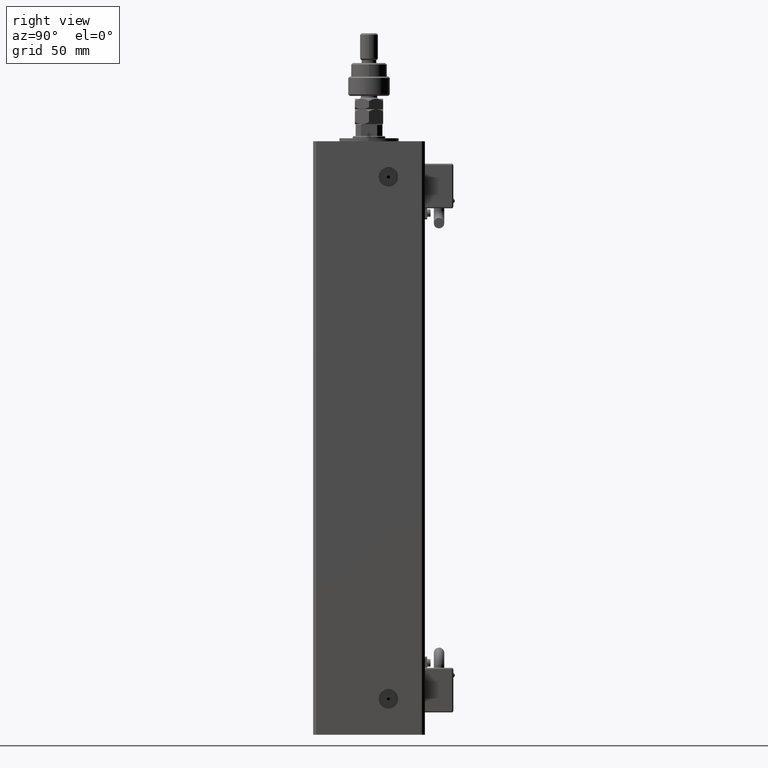
[diagram: clean part render]
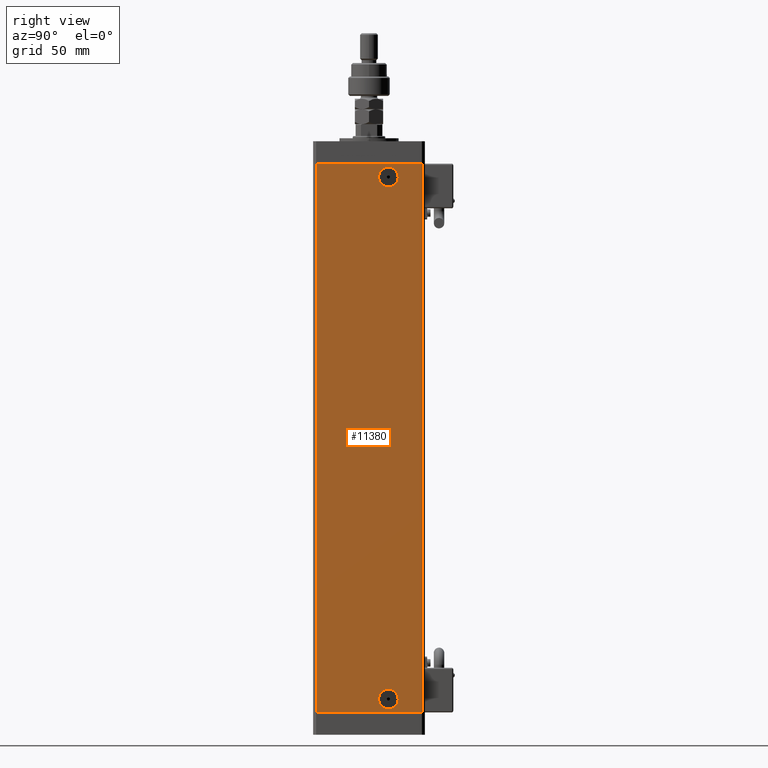
[diagram: same view with one face highlighted and labeled with its STEP entity id]
A machine part, right view. The second image highlights one B-rep face of the part: STEP entity #11380.
In plain terms, the highlighted planar face has unit normal (1, -0, 0).
Its self-contained STEP definition (entity closure, byte-faithful):
#797 = CARTESIAN_POINT ( 'NONE',  ( 42.49999999999999289, 13.00000000000000000, 359.5000000000000000 ) ) ;
#1096 = DIRECTION ( 'NONE',  ( 0.000000000000000000, 1.000000000000000000, 0.000000000000000000 ) ) ;
#1105 = PLANE ( 'NONE',  #28594 ) ;
#1867 = DIRECTION ( 'NONE',  ( 1.000000000000000000, -2.275047181608927644E-16, 0.000000000000000000 ) ) ;
#2565 = CIRCLE ( 'NONE', #54070, 6.579999999999986748 ) ;
#3011 = EDGE_CURVE ( 'NONE', #29887, #26501, #10929, .T. ) ;
#3393 = ORIENTED_EDGE ( 'NONE', *, *, #13035, .F. ) ;
#3810 = EDGE_CURVE ( 'NONE', #19186, #21147, #37678, .T. ) ;
#4822 = EDGE_LOOP ( 'NONE', ( #36706, #3393 ) ) ;
#5244 = DIRECTION ( 'NONE',  ( 1.000000000000000000, -2.931927001650941360E-16, 0.000000000000000000 ) ) ;
#5721 = CARTESIAN_POINT ( 'NONE',  ( 42.49999999999998579, -35.50000000000000711, 368.5000000000000000 ) ) ;
#6711 = CIRCLE ( 'NONE', #13246, 6.579999999999986748 ) ;
#9079 = FACE_BOUND ( 'NONE', #4822, .T. ) ;
#9479 = VERTEX_POINT ( 'NONE', #52114 ) ;
#10383 = CARTESIAN_POINT ( 'NONE',  ( 42.49999999999999289, 13.00000000000000000, 9.000000000000000000 ) ) ;
#10929 = LINE ( 'NONE', #23255, #40577 ) ;
#11380 = ADVANCED_FACE ( 'NONE', ( #18446, #9079, #41274 ), #1105, .T. ) ;
#11427 = CARTESIAN_POINT ( 'NONE',  ( 42.50000000000000711, 35.50000000000001421, 0.000000000000000000 ) ) ;
#11829 = CIRCLE ( 'NONE', #44585, 6.579999999999997407 ) ;
#13035 = EDGE_CURVE ( 'NONE', #49359, #16831, #11829, .T. ) ;
#13246 = AXIS2_PLACEMENT_3D ( 'NONE', #797, #27772, #32192 ) ;
#13503 = ORIENTED_EDGE ( 'NONE', *, *, #15901, .F. ) ;
#15339 = VECTOR ( 'NONE', #55576, 1000.000000000000000 ) ;
#15901 = EDGE_CURVE ( 'NONE', #9479, #42657, #2565, .T. ) ;
#16831 = VERTEX_POINT ( 'NONE', #37760 ) ;
#16981 = ORIENTED_EDGE ( 'NONE', *, *, #3810, .T. ) ;
#17240 = CARTESIAN_POINT ( 'NONE',  ( 42.50000000000000711, 35.50000000000001421, 0.000000000000000000 ) ) ;
#17671 = VECTOR ( 'NONE', #45971, 1000.000000000000000 ) ;
#18151 = DIRECTION ( 'NONE',  ( 1.000000000000000000, -2.275047181608927644E-16, 0.000000000000000000 ) ) ;
#18446 = FACE_BOUND ( 'NONE', #46087, .T. ) ;
#18731 = EDGE_CURVE ( 'NONE', #29887, #19186, #32226, .T. ) ;
#18998 = CARTESIAN_POINT ( 'NONE',  ( 42.50000000000000711, 35.50000000000001421, 368.5000000000000000 ) ) ;
#19186 = VERTEX_POINT ( 'NONE', #32084 ) ;
#19746 = CARTESIAN_POINT ( 'NONE',  ( 42.50000000000000711, 35.50000000000001421, 368.5000000000000000 ) ) ;
#21147 = VERTEX_POINT ( 'NONE', #54069 ) ;
#23255 = CARTESIAN_POINT ( 'NONE',  ( 42.50000000000000711, 35.50000000000001421, 368.5000000000000000 ) ) ;
#24392 = CARTESIAN_POINT ( 'NONE',  ( 42.49999999999999289, 13.00000000000000000, 9.000000000000000000 ) ) ;
#25825 = ORIENTED_EDGE ( 'NONE', *, *, #30297, .F. ) ;
#26501 = VERTEX_POINT ( 'NONE', #17240 ) ;
#27772 = DIRECTION ( 'NONE',  ( 1.000000000000000000, -2.275047181608927644E-16, 0.000000000000000000 ) ) ;
#28082 = EDGE_CURVE ( 'NONE', #16831, #49359, #32037, .T. ) ;
#28291 = AXIS2_PLACEMENT_3D ( 'NONE', #24392, #50491, #46966 ) ;
#28594 = AXIS2_PLACEMENT_3D ( 'NONE', #18998, #5244, #54780 ) ;
#29021 = DIRECTION ( 'NONE',  ( -2.931927001650941360E-16, -1.000000000000000000, 0.000000000000000000 ) ) ;
#29887 = VERTEX_POINT ( 'NONE', #19746 ) ;
#30297 = EDGE_CURVE ( 'NONE', #42657, #9479, #6711, .T. ) ;
#31060 = EDGE_CURVE ( 'NONE', #26501, #21147, #38115, .T. ) ;
#32037 = CIRCLE ( 'NONE', #28291, 6.579999999999997407 ) ;
#32084 = CARTESIAN_POINT ( 'NONE',  ( 42.49999999999998579, -35.50000000000000711, 368.5000000000000000 ) ) ;
#32192 = DIRECTION ( 'NONE',  ( 0.000000000000000000, 1.000000000000000000, 0.000000000000000000 ) ) ;
#32226 = LINE ( 'NONE', #45698, #17671 ) ;
#36706 = ORIENTED_EDGE ( 'NONE', *, *, #28082, .F. ) ;
#37678 = LINE ( 'NONE', #5721, #15339 ) ;
#37760 = CARTESIAN_POINT ( 'NONE',  ( 42.49999999999999289, 19.57999999999999829, 9.000000000000000000 ) ) ;
#38115 = LINE ( 'NONE', #11427, #39507 ) ;
#38553 = ORIENTED_EDGE ( 'NONE', *, *, #31060, .F. ) ;
#39507 = VECTOR ( 'NONE', #29021, 1000.000000000000000 ) ;
#40577 = VECTOR ( 'NONE', #45820, 1000.000000000000000 ) ;
#41274 = FACE_OUTER_BOUND ( 'NONE', #50763, .T. ) ;
#42657 = VERTEX_POINT ( 'NONE', #55015 ) ;
#44585 = AXIS2_PLACEMENT_3D ( 'NONE', #10383, #1867, #46446 ) ;
#45031 = ORIENTED_EDGE ( 'NONE', *, *, #3011, .F. ) ;
#45698 = CARTESIAN_POINT ( 'NONE',  ( 42.50000000000000711, 35.50000000000001421, 368.5000000000000000 ) ) ;
#45820 = DIRECTION ( 'NONE',  ( -0.000000000000000000, -0.000000000000000000, -1.000000000000000000 ) ) ;
#45971 = DIRECTION ( 'NONE',  ( -2.931927001650941360E-16, -1.000000000000000000, 0.000000000000000000 ) ) ;
#46087 = EDGE_LOOP ( 'NONE', ( #25825, #13503 ) ) ;
#46446 = DIRECTION ( 'NONE',  ( 0.000000000000000000, 1.000000000000000000, 0.000000000000000000 ) ) ;
#46966 = DIRECTION ( 'NONE',  ( 0.000000000000000000, 1.000000000000000000, 0.000000000000000000 ) ) ;
#49359 = VERTEX_POINT ( 'NONE', #49526 ) ;
#49526 = CARTESIAN_POINT ( 'NONE',  ( 42.49999999999999289, 6.420000000000000817, 9.000000000000000000 ) ) ;
#50087 = CARTESIAN_POINT ( 'NONE',  ( 42.49999999999999289, 13.00000000000000000, 359.5000000000000000 ) ) ;
#50491 = DIRECTION ( 'NONE',  ( 1.000000000000000000, -2.275047181608927644E-16, 0.000000000000000000 ) ) ;
#50763 = EDGE_LOOP ( 'NONE', ( #38553, #45031, #54100, #16981 ) ) ;
#52114 = CARTESIAN_POINT ( 'NONE',  ( 42.49999999999999289, 6.420000000000013252, 359.5000000000000000 ) ) ;
#54069 = CARTESIAN_POINT ( 'NONE',  ( 42.49999999999998579, -35.50000000000000711, 0.000000000000000000 ) ) ;
#54070 = AXIS2_PLACEMENT_3D ( 'NONE', #50087, #18151, #1096 ) ;
#54100 = ORIENTED_EDGE ( 'NONE', *, *, #18731, .T. ) ;
#54780 = DIRECTION ( 'NONE',  ( 2.931927001650941360E-16, 1.000000000000000000, 0.000000000000000000 ) ) ;
#55015 = CARTESIAN_POINT ( 'NONE',  ( 42.49999999999999289, 19.57999999999998764, 359.5000000000000000 ) ) ;
#55576 = DIRECTION ( 'NONE',  ( -0.000000000000000000, -0.000000000000000000, -1.000000000000000000 ) ) ;